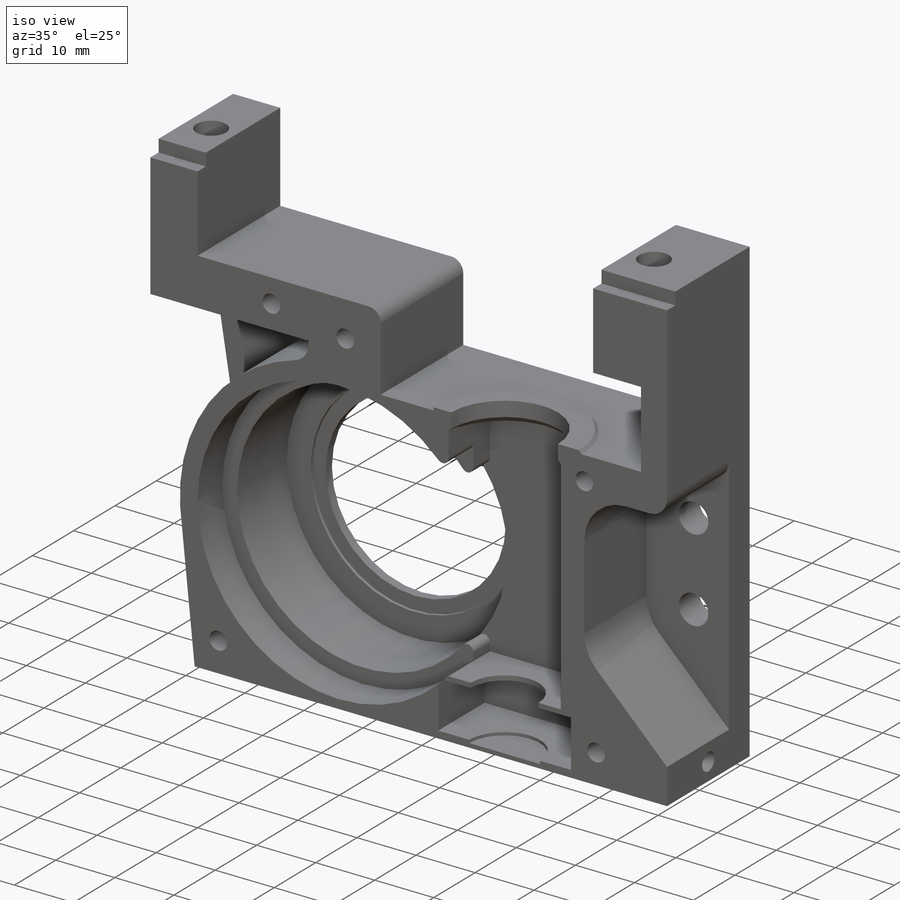
[diagram: iso view]
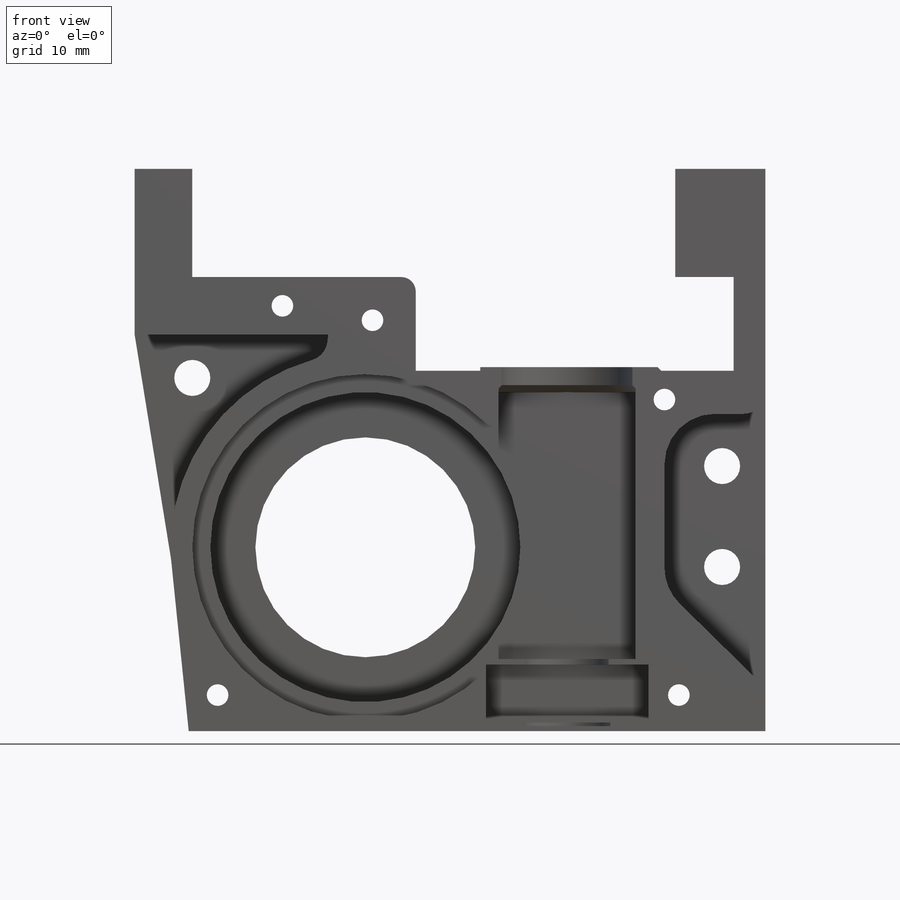
[diagram: front view]
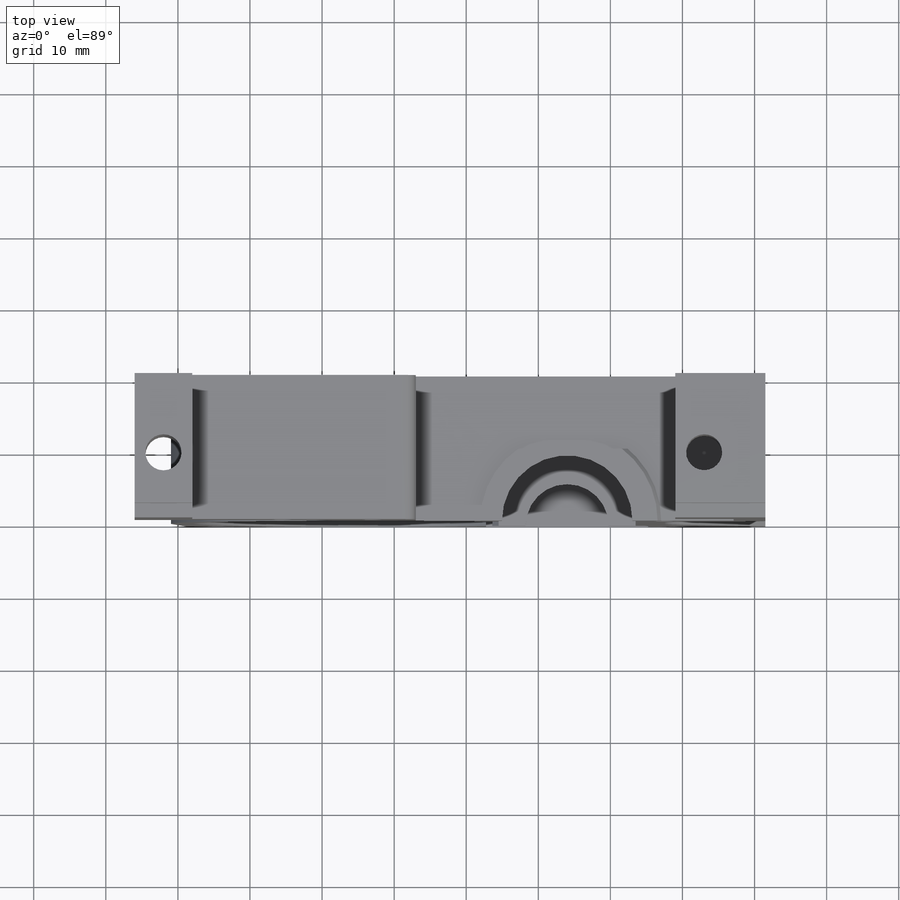
[diagram: top view]
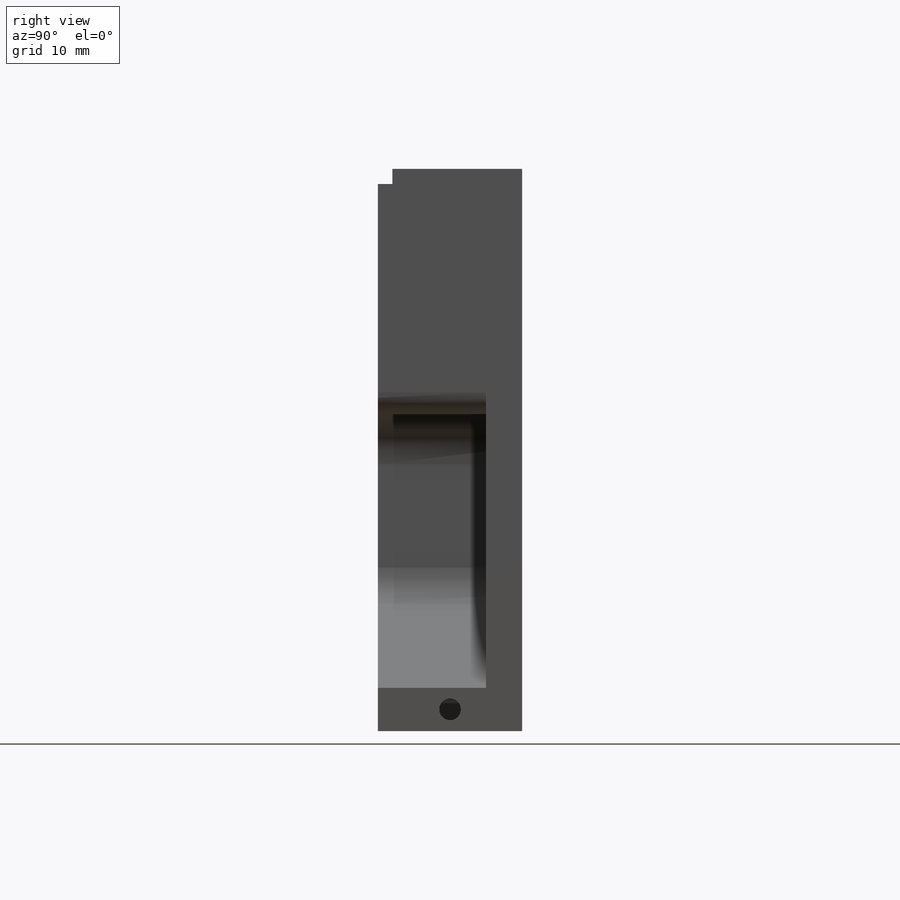
[diagram: right view]
SOLIDWORKS PART (.sldprt)
format: sldprt  version: not decoded by parser v0  size: 877,568 bytes
history: native  units: mm
features: sketch x37, cut_extrude x20, extrude x7, hole x5, fillet x4, chamfer x2, material x1 (+14 scaffold rows collapsed)
feature tree (90):
  scaffold x14  (default folders/planes/origin — collapsed)
  material  "Material <not specified>"
  sketch  "Sketch1"  dims[D1=83.0mm D2=78.0mm]
  extrude  "Extrude1"  Depth=20mm
  sketch  "Sketch3"  dims[D1=66.0mm D2=15.0mm]
  cut_extrude  "Extrude2"  Depth=40mm
  sketch  "Sketch4"  dims[c1.D1=10.0mm c1.D2=19.0mm c1.D3=24.0mm c1.D4=19.0mm c2.D3=42.0mm c2.D5=13.0mm]
  cut_extrude  "Extrude3"  Depth=10mm
  sketch  "Sketch5"  dims[c1.D1=2.0mm c1.D2=3.0mm c1.D3=35.0mm c2.D2=28.0mm c2.D3=5.0mm c2.D4=~8.87537mm c3.D3=25.5mm]
  cut_extrude  "Extrude4"  Depth=6mm
  sketch  "Sketch7"  dims[D1=30.5mm]
  cut_extrude  "Extrude6"  [1 undecoded]
  sketch  "Sketch8"  dims[c1.D1=3.0mm c1.D2=8.0mm c2.D1=3.0mm c2.D3=3.0mm]
  cut_extrude  "Extrude7"  [1 undecoded]
  sketch  "Sketch31"  dims[D1=8.0mm D2=4.5mm]
  extrude  "Extrude24"  [1 undecoded]
  sketch  "Sketch9"  dims[D1=6.0mm D2=4.0mm D3=6.0mm]
  cut_extrude  "Extrude8"  [1 undecoded]
  sketch  "Sketch10"  dims[D1=3.0mm D2=12.45mm]
  extrude  "Extrude10"  [1 undecoded]
  sketch  "Sketch11"  dims[D3=4.05mm D1=18.1mm D2=0.1mm]
  cut_extrude  "Extrude11"  Depth=5mm
  sketch  "Sketch38"  dims[D1=11.5mm]
  cut_extrude  "Extrude31"  Depth=3mm
  chamfer  "Chamfer2"  Distance=1mm Angle=45deg
  sketch  "Sketch14"  dims[c1.D1=0.0mm c1.D2=1.0mm c2.D1=0.0mm c2.D2=3.0mm]
  extrude  "Extrude13"  Depth=0.5mm
  chamfer  "Chamfer3"  Distance=1mm Angle=45deg
  sketch  "Sketch15"
  cut_extrude  "Extrude14"  [1 undecoded]
  fillet  "Fillet2"  Radius=7mm
  fillet  "Fillet4"  Radius=2mm
  hole  "Ø3.0 (3) Diameter Hole1"  Diameter=3mm Depth=20mm
  sketch  "3DSketch1"  dims[D1=5.0mm D2=4.5mm D3=6.0mm D4=6.0mm D5=5.0mm D6=12.0mm D7=4.0mm D8=14.0mm]
  sketch  "Sketch21"  dims[hole-wizard template sketch: 60 standard entries collapsed; hole parameters kept: c18.Thru Hole Depth=20.0mm]
  sketch  "Sketch25"  dims[D1=43.0mm]
  cut_extrude  "Extrude20"  Depth=12mm
  sketch  "Sketch26"  dims[D2=3.0mm D1=10.0mm]
  cut_extrude  "Extrude21"  Depth=13mm
  hole  "Ø3.0 (3) Diameter Hole2"  Diameter=3mm Depth=8mm
  sketch  "3DSketch2"  dims[D1=22.0mm D2=48.0mm D3=4.0mm]
  sketch  "Sketch27"  dims[hole-wizard template sketch: 47 standard entries collapsed; hole parameters kept: c15.Hole Depth=8.0mm c15.D3=~14.816244mm c15.Drill Angle=180.0deg]
  hole  "Ø3.0 (3) Diameter Hole3"  Diameter=3mm Depth=20mm
  sketch  "3DSketch3"  dims[c1.D1=~18.532857mm c1.D3=16.0mm c1.D2=4.0mm c2.D1=20.5mm]
  sketch  "Sketch28"  dims[hole-wizard template sketch: 50 standard entries collapsed; hole parameters above]
  sketch  "Sketch30"  dims[D1=6.0mm]
  cut_extrude  "Extrude23"  Depth=4mm
  sketch  "Sketch32"  dims[D1=8.0mm]
  cut_extrude  "Extrude25"  [1 undecoded]
  sketch  "Sketch33"  dims[D1=67.0mm]
  extrude  "Extrude26"  [1 undecoded]
  sketch  "Sketch22"  dims[c1.D1=5.0mm c1.D2=4.0mm c1.D3=6.0mm c1.D4=4.0mm c1.D5=11.0mm c2.D2=4.0mm c2.D3=6.0mm c2.D4=4.0mm c2.D5=6.0mm c3.D3=6.0mm c3.D5=11.0mm]
  cut_extrude  "Extrude17"  Depth=23mm
  sketch  "Sketch36"  dims[D1=2.1mm]
  cut_extrude  "Extrude29"  [1 undecoded]
  sketch  "Sketch37"  dims[D1=2.1mm]
  cut_extrude  "Extrude30"  Depth=2mm
  fillet  "Fillet5"  Radius=3mm
  sketch  "Sketch39"  dims[D1=22.5mm D2=8.0mm D3=1.2mm]
  cut_extrude  "Extrude32"  Depth=11.2mm
  sketch  "Sketch41"  dims[D1=0.0mm]
  extrude  "Extrude34"  Depth=5mm
  hole  "Ø5.0 (5) Diameter Hole1"  Diameter=5mm Depth=15mm
  sketch  "3DSketch4"  dims[c1.D1=~6.740224mm c1.D4=6.0mm c1.D2=14.0mm c1.D3=~14.733116mm c2.D4=~14.733116mm c2.D3=20.0mm c2.D1=6.0mm]
  sketch  "Sketch42"  dims[hole-wizard template sketch: 47 standard entries collapsed; hole parameters kept: c15.Hole Depth=15.0mm c15.D3=~14.816244mm c15.Drill Angle=180.0deg]
  sketch  "Sketch43"
  extrude  "Extrude35"  Depth=5mm
  hole  "Ø5.0 (5) Diameter Hole2"  Diameter=5mm Depth=15mm
  sketch  "3DSketch5"  dims[D1=6.0mm D2=10.0mm]
  sketch  "Sketch44"  dims[hole-wizard template sketch: 47 standard entries collapsed; hole parameters kept: c15.Hole Depth=15.0mm c15.D3=~14.816244mm c15.Drill Angle=180.0deg]
  sketch  "Sketch48"  dims[D1=6.0mm]
  cut_extrude  "Extrude39"  Depth=4mm
  sketch  "Sketch50"  dims[D1=12.0mm]
  cut_extrude  "Extrude40"  Depth=0.5mm
  sketch  "Sketch51"  dims[D1=2.2mm]
  cut_extrude  "Extrude41"  Depth=0.5mm
  fillet  "Fillet6"  Radius=1mm
decode coverage: 64 of 75 modeling features carry decoded parameters
note: ~ marks probable driven/reference dimensions
note: 9 parameter values undecoded
summary: no parameter record found for 9 features; Diameter pulled from absorbed wizard sketch
note: suppression state not decoded; provenance and decode notes live in map.json
